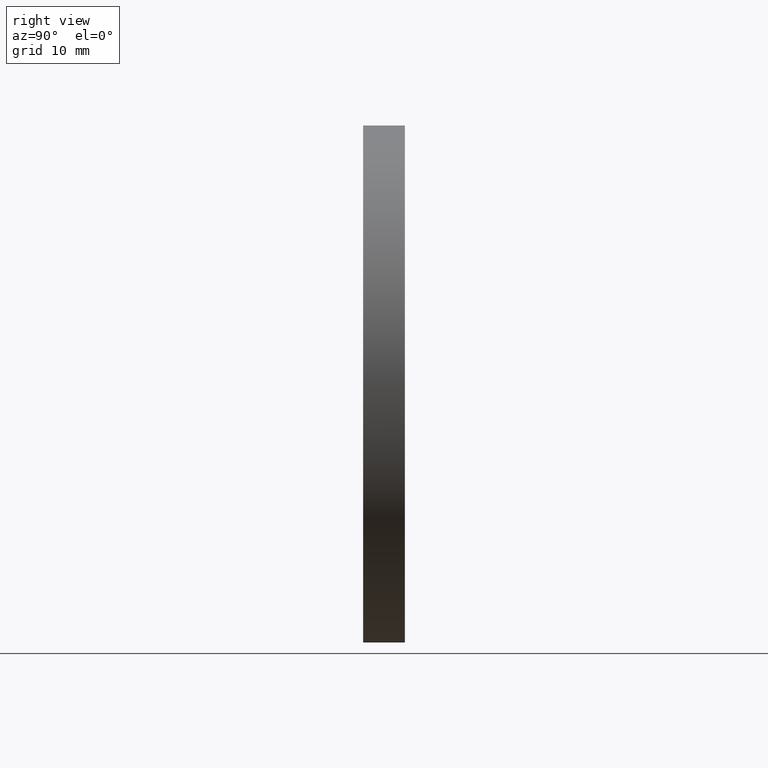
[diagram: clean part render]
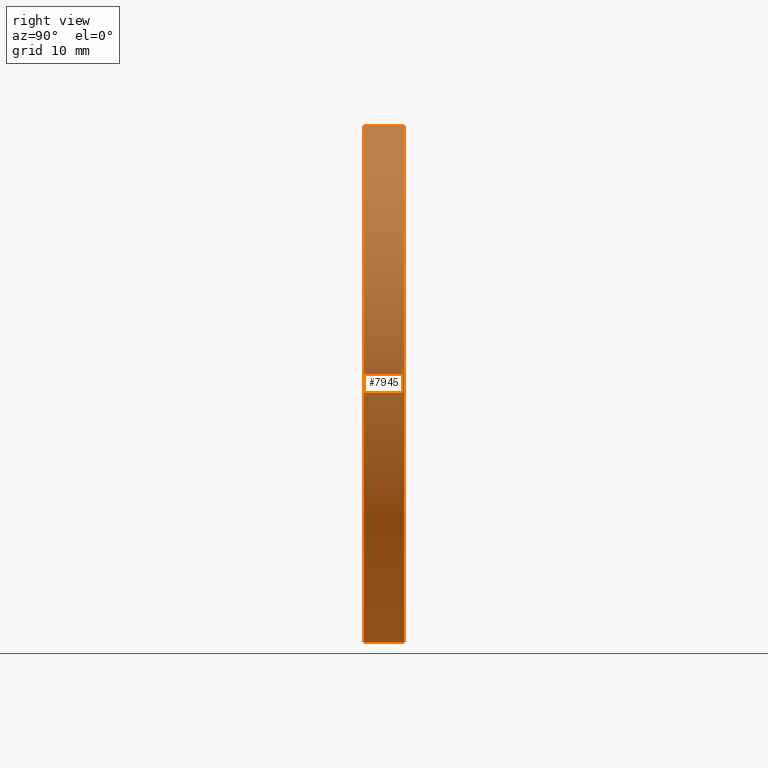
[diagram: same view with one face highlighted and labeled with its STEP entity id]
A machine part, right view. The second image highlights one B-rep face of the part: STEP entity #7945.
In plain terms, the highlighted cylindrical surface (partial cylindrical patch) has radius 31 mm, axis along (-0, 1, -0).
Its self-contained STEP definition (entity closure, byte-faithful):
#165 = CARTESIAN_POINT ( 'NONE',  ( 3.796405077356795115E-15, -2.602085213965210642E-15, -31.00000000000000000 ) ) ;
#608 = AXIS2_PLACEMENT_3D ( 'NONE', #9365, #7309, #789 ) ;
#770 = DIRECTION ( 'NONE',  ( -0.000000000000000000, 1.000000000000000000, -0.000000000000000000 ) ) ;
#789 = DIRECTION ( 'NONE',  ( 0.000000000000000000, 0.000000000000000000, 1.000000000000000000 ) ) ;
#1005 = VERTEX_POINT ( 'NONE', #12803 ) ;
#1210 = CARTESIAN_POINT ( 'NONE',  ( 3.796405077356794326E-15, 4.999999999999997335, -30.99999999999999645 ) ) ;
#2030 = ORIENTED_EDGE ( 'NONE', *, *, #8470, .F. ) ;
#2128 = DIRECTION ( 'NONE',  ( -0.000000000000000000, 1.000000000000000000, -0.000000000000000000 ) ) ;
#3323 = CARTESIAN_POINT ( 'NONE',  ( 0.000000000000000000, -2.602085213965210642E-15, 0.000000000000000000 ) ) ;
#3396 = CARTESIAN_POINT ( 'NONE',  ( 0.000000000000000000, 4.999999999999997335, 31.00000000000000000 ) ) ;
#5050 = CARTESIAN_POINT ( 'NONE',  ( 3.796405077356795115E-15, 4.999999999999997335, -31.00000000000000000 ) ) ;
#5161 = EDGE_LOOP ( 'NONE', ( #9426, #8866, #11738, #2030 ) ) ;
#6233 = VECTOR ( 'NONE', #770, 1000.000000000000000 ) ;
#6486 = DIRECTION ( 'NONE',  ( 0.000000000000000000, 0.000000000000000000, 1.000000000000000000 ) ) ;
#7309 = DIRECTION ( 'NONE',  ( -0.000000000000000000, 1.000000000000000000, -0.000000000000000000 ) ) ;
#7451 = VECTOR ( 'NONE', #8811, 1000.000000000000000 ) ;
#7545 = VERTEX_POINT ( 'NONE', #1210 ) ;
#7945 = ADVANCED_FACE ( 'NONE', ( #10996 ), #8312, .T. ) ;
#7994 = CARTESIAN_POINT ( 'NONE',  ( 0.000000000000000000, 4.999999999999997335, 30.99999999999999645 ) ) ;
#8312 = CYLINDRICAL_SURFACE ( 'NONE', #608, 31.00000000000000000 ) ;
#8448 = DIRECTION ( 'NONE',  ( 0.000000000000000000, 0.000000000000000000, 1.000000000000000000 ) ) ;
#8470 = EDGE_CURVE ( 'NONE', #1005, #12075, #11509, .T. ) ;
#8613 = CIRCLE ( 'NONE', #9006, 31.00000000000000000 ) ;
#8811 = DIRECTION ( 'NONE',  ( -0.000000000000000000, 1.000000000000000000, -0.000000000000000000 ) ) ;
#8866 = ORIENTED_EDGE ( 'NONE', *, *, #10747, .T. ) ;
#9006 = AXIS2_PLACEMENT_3D ( 'NONE', #3323, #14001, #6486 ) ;
#9240 = VERTEX_POINT ( 'NONE', #165 ) ;
#9365 = CARTESIAN_POINT ( 'NONE',  ( 0.000000000000000000, 4.999999999999997335, 0.000000000000000000 ) ) ;
#9426 = ORIENTED_EDGE ( 'NONE', *, *, #10455, .T. ) ;
#9453 = LINE ( 'NONE', #5050, #6233 ) ;
#10455 = EDGE_CURVE ( 'NONE', #1005, #9240, #8613, .T. ) ;
#10747 = EDGE_CURVE ( 'NONE', #9240, #7545, #9453, .T. ) ;
#10996 = FACE_OUTER_BOUND ( 'NONE', #5161, .T. ) ;
#11140 = CIRCLE ( 'NONE', #11356, 30.99999999999999645 ) ;
#11356 = AXIS2_PLACEMENT_3D ( 'NONE', #13799, #2128, #8448 ) ;
#11509 = LINE ( 'NONE', #3396, #7451 ) ;
#11711 = EDGE_CURVE ( 'NONE', #12075, #7545, #11140, .T. ) ;
#11738 = ORIENTED_EDGE ( 'NONE', *, *, #11711, .F. ) ;
#12075 = VERTEX_POINT ( 'NONE', #7994 ) ;
#12803 = CARTESIAN_POINT ( 'NONE',  ( 0.000000000000000000, -2.602085213965210642E-15, 31.00000000000000000 ) ) ;
#13799 = CARTESIAN_POINT ( 'NONE',  ( 0.000000000000000000, 4.999999999999997335, 0.000000000000000000 ) ) ;
#14001 = DIRECTION ( 'NONE',  ( -0.000000000000000000, 1.000000000000000000, -0.000000000000000000 ) ) ;